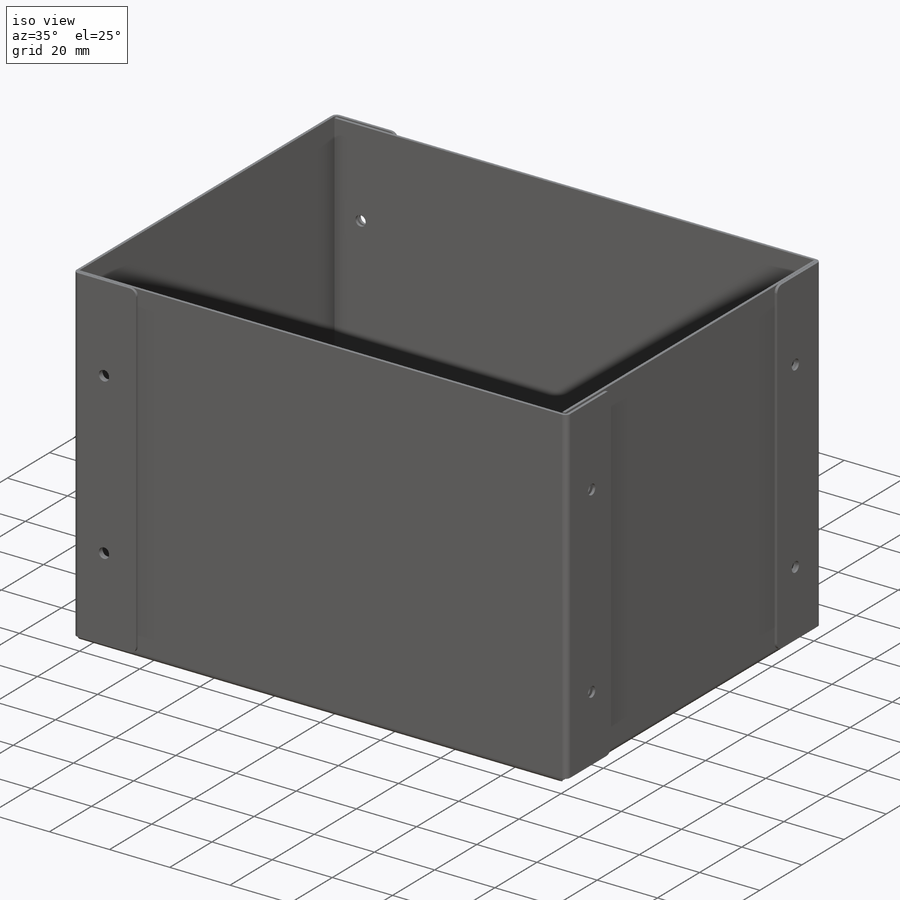
[diagram: iso view]
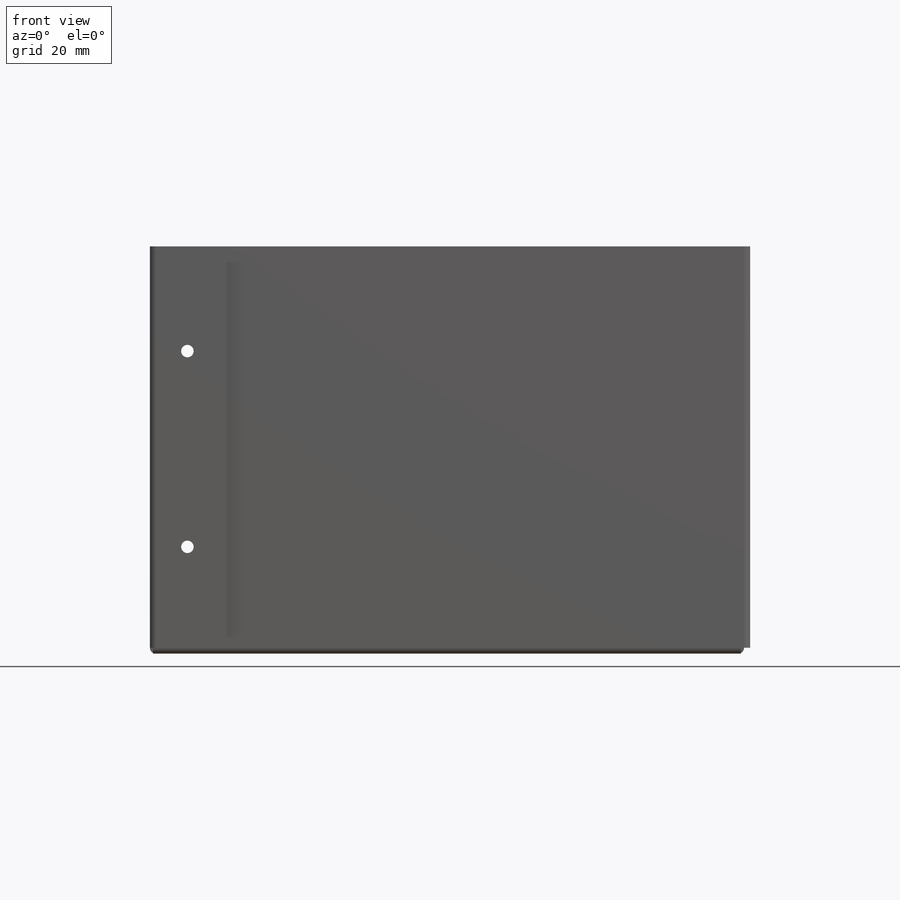
[diagram: front view]
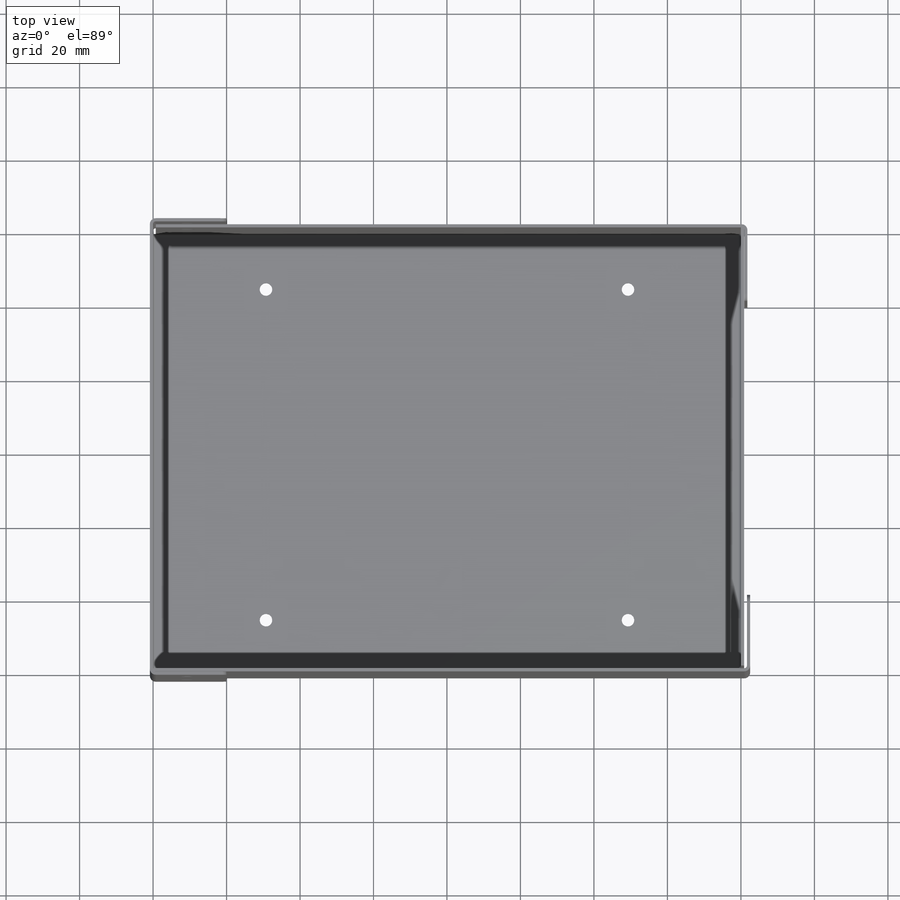
[diagram: top view]
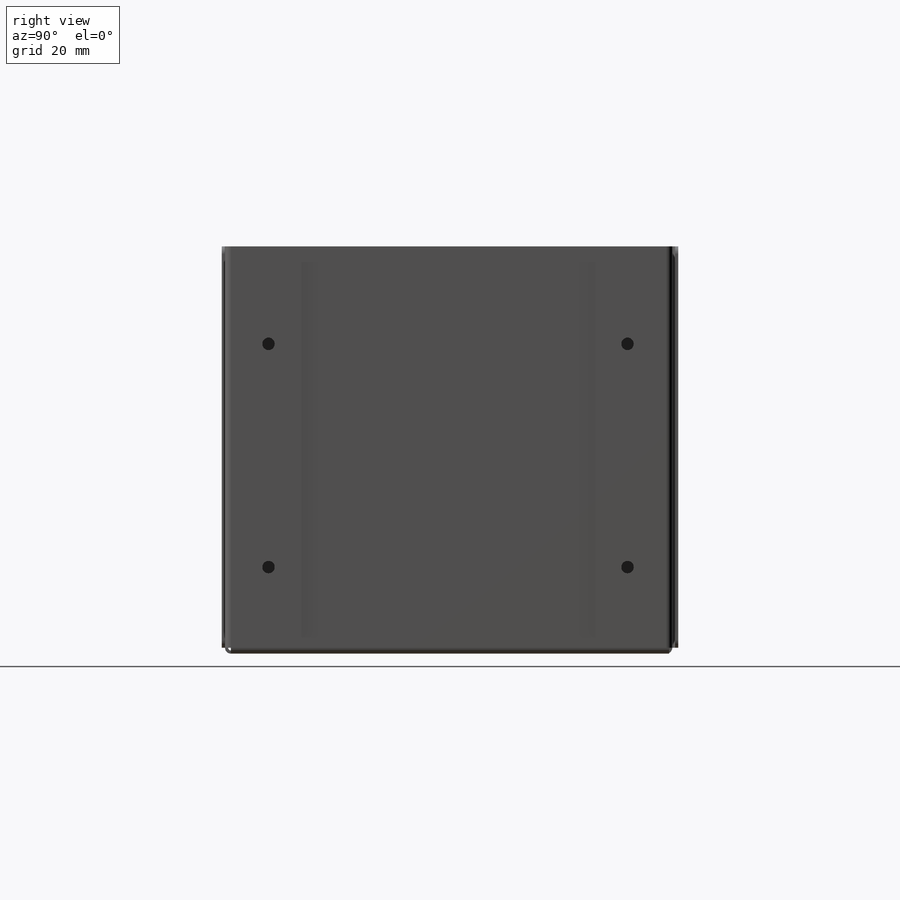
[diagram: right view]
SOLIDWORKS PART (.sldprt)
format: sldprt  version: not decoded by parser v0  size: 1,684,992 bytes
history: native  units: mm
features: sketch x82, sheet_metal_op x32, cut_extrude x8, hole x7, fillet x7, plane x3, material x1 + 24 further entries (+12 scaffold rows collapsed; 24 parser-record rows omitted)
feature tree (200):
  scaffold x12  (default folders/planes/origin — collapsed)
  material  "Material <not specified>"
  sketch  "Sketch1"  dims[c1.D1=130.0mm c1.D2=160.0mm c2.D1=0.7366mm c2.D2=0.5 c2.D3=0.0mm c2.D6=500.0mm]
  sheet_metal_op  "Base-Flange1"
  plane  "Plane2"
  sketch  "Sketch8"  dims[c1.D1=160.0mm c2.D1=0.7366mm c2.D4=90.0deg c2.D5=1.0 c2.D8=0.43mm c2.D9=0.43mm c3.D1=0.7366mm c3.D2=500.0mm c3.D3=0.0mm c3.D6=10.0mm c3.D7=110.0mm c3.Edge-Flange2=0.0]
  sketch  "Sketch11"
  sheet_metal_op  "EdgeBend2"  Edge-Flange3=0
  sketch  "Sketch15"
  sheet_metal_op  "EdgeBend3"  Edge-Flange4=0
  sketch  "Sketch18"
  sheet_metal_op  "EdgeBend4"
  hole  "M3 Clearance Hole3"  Diameter=3.4mm Depth=25.4mm
  sketch  "Sketch47"  dims[D1=30.0mm D2=30.0mm D3=30.0mm D4=30.0mm D5=8.0mm D6=8.0mm D7=15.0mm D8=15.0mm]
  sketch  "Sketch46"  dims[hole-wizard template sketch: 47 standard entries collapsed; hole parameters kept: c15.Hole Depth=25.4mm c15.D3=~14.816244mm c15.Drill Angle=118.0deg c15.Edge-Flange5=0.0]
  sketch  "Sketch50"
  sheet_metal_op  "EdgeBend5"  Edge-Flange7=0
  sketch  "Sketch60"
  sheet_metal_op  "EdgeBend7"  Edge-Flange8=0
  sketch  "Sketch63"
  sheet_metal_op  "EdgeBend8"  Edge-Flange9=0
  sketch  "Sketch66"
  sheet_metal_op  "EdgeBend9"
  hole  "M3 Clearance Hole5"  Diameter=3.4mm Depth=50mm
  sketch  "Sketch70"  dims[D1=55.0mm D2=55.0mm D3=7.0mm D4=7.0mm]
  sketch  "Sketch69"  dims[hole-wizard template sketch: 47 standard entries collapsed; hole parameters kept: c15.Hole Depth=50.0mm c15.D3=~14.816244mm c15.Drill Angle=118.0deg]
  hole  "M3 Clearance Hole6"  Diameter=3.4mm Depth=134.2634mm
  sketch  "Sketch72"
  sketch  "Sketch73"  dims[hole-wizard template sketch: 60 standard entries collapsed; hole parameters kept: c18.Thru Hole Depth=134.2634mm]
  fillet  "Fillet1"  Radius=2mm
  fillet  "Fillet2"  Radius=20mm
  sketch  "Sketch76"  dims[D1=1.5mm D2=38.1mm D3=25.4mm D4=92.7mm D5=25.4mm D6=38.1mm D7=92.7mm D8=1.5mm]
  plane  "Plane4"  Offset=92.7mm
  sketch  "Sketch77"  dims[D1=6.5mm D2=27.0mm]
  sketch  "Sketch78"  dims[D1=0.0mm D2=27.0mm D3=6.5mm]
  cut_extrude  "Cut-Extrude1"  Depth=10mm
  cut_extrude  "Cut-Extrude2"  Depth=10mm
  hole  "M3 Clearance Hole7"  Diameter=3.4mm Depth=50mm
  sketch  "Sketch80"
  sketch  "Sketch79"  dims[hole-wizard template sketch: 47 standard entries collapsed; hole parameters kept: c15.Hole Depth=50.0mm c15.D3=~14.816244mm c15.Drill Angle=118.0deg]
  hole  "M3 Clearance Hole8"  Diameter=3.4mm Depth=50mm
  sketch  "Sketch82"
  sketch  "Sketch81"  dims[hole-wizard template sketch: 47 standard entries collapsed; hole parameters kept: c15.Hole Depth=50.0mm c15.D3=~14.816244mm c15.Drill Angle=118.0deg]
  sketch  "Sketch83"  dims[c1.D1=15.0mm c1.D2=15.0mm c1.D3=8.0mm c2.D1=15.0mm c2.D2=25.0mm c2.D3=30.0mm c2.D4=25.0mm c2.D5=20.0mm c2.D6=20.0mm c2.D7=30.0mm]
  cut_extrude  "Cut-Extrude3"  [1 undecoded]
  plane  "Plane3"  Offset=92.7mm
  sketch  "Sketch84"  dims[D1=15.0mm D2=15.0mm D3=5.0mm D4=~60.103295mm]
  cut_extrude  "Cut-Extrude4"  Depth=10mm
  sketch  "Sketch87"  dims[D1=30.0mm D2=30.0mm D3=20.0mm D4=25.0mm]
  cut_extrude  "Cut-Extrude5"  Depth=10mm
  fillet  "Fillet4"  Radius=7mm
  sketch  "Sketch88"  dims[D1=25.0mm D2=20.0mm D3=25.0mm D4=25.0mm D5=20.0mm D6=20.0mm]
  cut_extrude  "Cut-Extrude6"  Depth=10mm
  sketch  "Sketch90"  dims[D1=20.0mm D2=20.0mm D3=20.0mm D4=20.0mm]
  cut_extrude  "Cut-Extrude7"  Depth=10mm
  hole  "M2 Clearance Hole1"  Diameter=2.4mm Depth=20mm
  sketch  "Sketch92"
  sketch  "Sketch91"  dims[hole-wizard template sketch: 47 standard entries collapsed; hole parameters kept: c15.Hole Depth=20.0mm c15.D3=~14.816244mm c15.Drill Angle=118.0deg]
  hole  "M2 Clearance Hole2"  Diameter=2.4mm Depth=20mm
  sketch  "Sketch94"
  sketch  "Sketch93"  dims[hole-wizard template sketch: 47 standard entries collapsed; hole parameters kept: c15.Hole Depth=20.0mm c15.D3=~14.816244mm c15.Drill Angle=118.0deg]
  fillet  "Fillet5"  Radius=7mm
  fillet  "Fillet6"  Radius=7mm
  fillet  "Fillet7"  Radius=7mm
  sketch  "Sketch95"  dims[D1=15.0mm D2=15.0mm D3=30.0mm D4=15.0mm]
  cut_extrude  "Cut-Extrude8"  Depth=10mm
  fillet  "Fillet8"  Radius=10mm
  sketch  "Bend-Lines1"
  sketch  "Bounding-Box1"
  sheet_metal_op  "Sheet-Metal(1)"
  "Flat-Pattern(1)"
  sketch  "Bend-Lines2"
  sketch  "Bounding-Box2"
  parser-record x24  (decoder bookkeeping rows leaked as tree rows — omitted from the tree; the rows remain in map.json)
  sheet_metal_op  "Sheet-Metal(2)"
  "Flat-Pattern(1)"
  sketch  "Bend-Lines2"
  sketch  "Bounding-Box2"
  sheet_metal_op  "Sheet-Metal(3)"
  "Flat-Pattern(1)"
  sketch  "Bend-Lines2"
  sketch  "Bounding-Box2"
  sheet_metal_op  "Sheet-Metal(4)"
  "Flat-Pattern(1)"
  sketch  "Bend-Lines2"
  sketch  "Bounding-Box2"
  sheet_metal_op  "Sheet-Metal(7)"
  "Flat-Pattern(1)"
  sketch  "Bend-Lines2"
  sketch  "Bounding-Box2"
  sheet_metal_op  "Sheet-Metal(14)"
  "Flat-Pattern(1)"
  sketch  "Bend-Lines2"
  sketch  "Bounding-Box2"
  sheet_metal_op  "Sheet-Metal(15)"
  "Flat-Pattern(1)"
  sketch  "Bend-Lines2"
  sketch  "Bounding-Box2"
  sheet_metal_op  "Sheet-Metal(17)"
  "Flat-Pattern(1)"
  sketch  "Bend-Lines2"
  sketch  "Bounding-Box2"
  sheet_metal_op  "Sheet-Metal(18)"
  "Flat-Pattern(1)"
  sketch  "Bend-Lines2"
  sketch  "Bounding-Box2"
  sheet_metal_op  "Sheet-Metal(19)"
  "Flat-Pattern(1)"
  sketch  "Bend-Lines2"
  sketch  "Bounding-Box2"
  sheet_metal_op  "Sheet-Metal(21)"
  "Flat-Pattern(1)"
  sketch  "Bend-Lines2"
  sketch  "Bounding-Box2"
  sheet_metal_op  "Sheet-Metal(22)"
  "Flat-Pattern(1)"
  sketch  "Bend-Lines2"
  sketch  "Bounding-Box2"
  sheet_metal_op  "Sheet-Metal(23)"
  "Flat-Pattern(1)"
  sketch  "Bend-Lines2"
  sketch  "Bounding-Box2"
  sheet_metal_op  "Sheet-Metal(24)"
  "Flat-Pattern(1)"
  sketch  "Bend-Lines2"
  sketch  "Bounding-Box2"
  sheet_metal_op  "Sheet-Metal(25)"
  "Flat-Pattern(1)"
  sketch  "Bend-Lines2"
  sketch  "Bounding-Box2"
  sheet_metal_op  "Sheet-Metal(26)"
  "Flat-Pattern(1)"
  sketch  "Bend-Lines2"
  sketch  "Bounding-Box2"
  sheet_metal_op  "Sheet-Metal(27)"
  "Flat-Pattern(1)"
  sketch  "Bend-Lines2"
  sketch  "Bounding-Box2"
  sheet_metal_op  "Sheet-Metal(28)"
  "Flat-Pattern(1)"
  sketch  "Bend-Lines2"
  sketch  "Bounding-Box2"
  sheet_metal_op  "Sheet-Metal(29)"
  "Flat-Pattern(1)"
  sketch  "Bend-Lines2"
  sketch  "Bounding-Box2"
  sheet_metal_op  "Sheet-Metal(30)"
  "Flat-Pattern(1)"
  sketch  "Bend-Lines2"
  sketch  "Bounding-Box2"
  sheet_metal_op  "Sheet-Metal(31)"
  "Flat-Pattern(1)"
  sketch  "Bend-Lines2"
  sketch  "Bounding-Box2"
  sheet_metal_op  "Sheet-Metal(32)"
  "Flat-Pattern(1)"
  sketch  "Bend-Lines2"
  sketch  "Bounding-Box2"
  sheet_metal_op  "Sheet-Metal(33)"
  "Flat-Pattern(1)"
  sketch  "Bend-Lines2"
  sketch  "Bounding-Box2"
  sheet_metal_op  "Sheet-Metal(34)"
  "Flat-Pattern(1)"
  sketch  "Bend-Lines2"
  sketch  "Bounding-Box2"
decode coverage: 46 of 136 modeling features carry decoded parameters; 24 rows unclassified (native names shown)
note: ~ marks probable driven/reference dimensions
note: 1 parameter value undecoded
summary: Diameter pulled from absorbed wizard sketch
note: suppression state not decoded; provenance and decode notes live in map.json
